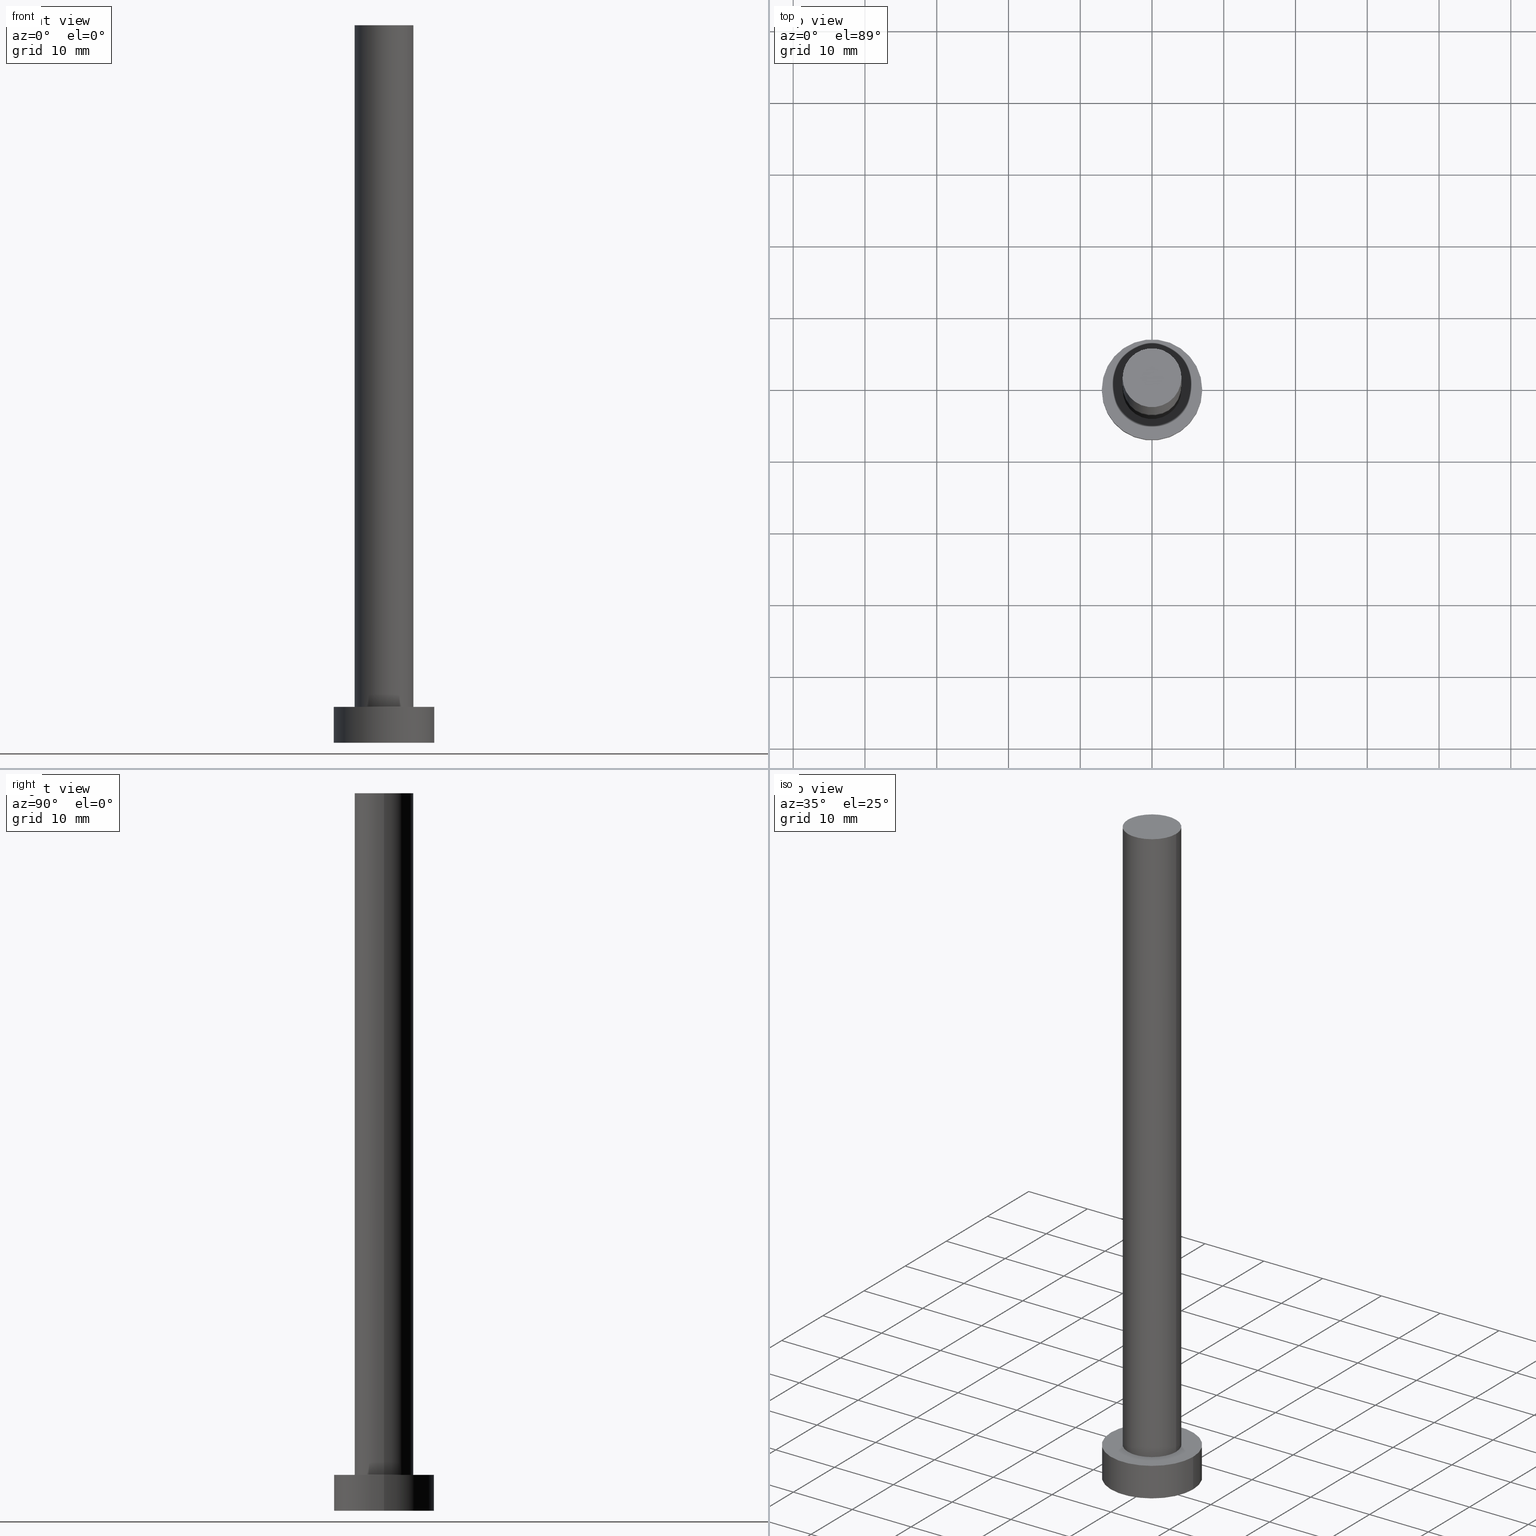
[diagram: canonical four-view strip — front | top / right | iso, engineering-drawing reading convention]
A machine part, canonical four-view strip (front | top / right | iso — engineering-drawing reading convention). The complete STEP part file that produces these views, byte-faithful:
ISO-10303-21;
HEADER;
FILE_DESCRIPTION (( 'STEP AP203' ),
    '1' );
FILE_NAME ('ecca.STEP',
    '2023-02-12T11:47:00',
    ( '' ),
    ( '' ),
    'SwSTEP 2.0',
    'SolidWorks 2019',
    '' );
FILE_SCHEMA (( 'CONFIG_CONTROL_DESIGN' ));
ENDSEC;

DATA;
#1 = EDGE_CURVE ( 'NONE', #114, #191, #79, .T. ) ;
#2 = FACE_OUTER_BOUND ( 'NONE', #239, .T. ) ;
#3 = CARTESIAN_POINT ( 'NONE',  ( 0.000000000000000000, 0.000000000000000000, 5.000000000000000000 ) ) ;
#4 = EDGE_CURVE ( 'NONE', #191, #254, #134, .T. ) ;
#5 = CARTESIAN_POINT ( 'NONE',  ( 4.099999999999999645, 5.021051876504147385E-16, 100.0000000000000000 ) ) ;
#6 = DIRECTION ( 'NONE',  ( -0.000000000000000000, -0.000000000000000000, -1.000000000000000000 ) ) ;
#7 = CARTESIAN_POINT ( 'NONE',  ( -4.099999999999999645, 0.000000000000000000, 5.000000000000000000 ) ) ;
#8 = COORDINATED_UNIVERSAL_TIME_OFFSET ( 1, 0, .AHEAD. ) ;
#9 = CARTESIAN_POINT ( 'NONE',  ( 0.000000000000000000, 0.000000000000000000, 0.000000000000000000 ) ) ;
#10 = APPROVAL_DATE_TIME ( #110, #227 ) ;
#11 = APPROVAL_ROLE ( '' ) ;
#12 = VECTOR ( 'NONE', #202, 1000.000000000000000 ) ;
#13 = CARTESIAN_POINT ( 'NONE',  ( 0.000000000000000000, 0.000000000000000000, 100.0000000000000000 ) ) ;
#14 = AXIS2_PLACEMENT_3D ( 'NONE', #220, #143, #140 ) ;
#15 = ORIENTED_EDGE ( 'NONE', *, *, #46, .T. ) ;
#16 = ADVANCED_FACE ( 'NONE', ( #38 ), #237, .T. ) ;
#17 = ORIENTED_EDGE ( 'NONE', *, *, #210, .F. ) ;
#18 = EDGE_LOOP ( 'NONE', ( #77, #152 ) ) ;
#19 = ORIENTED_EDGE ( 'NONE', *, *, #46, .F. ) ;
#20 =( NAMED_UNIT ( * ) PLANE_ANGLE_UNIT ( ) SI_UNIT ( $, .RADIAN. ) );
#21 = DIRECTION ( 'NONE',  ( 1.000000000000000000, 0.000000000000000000, 0.000000000000000000 ) ) ;
#22 = VECTOR ( 'NONE', #44, 1000.000000000000000 ) ;
#23 = FACE_BOUND ( 'NONE', #94, .T. ) ;
#24 = ADVANCED_FACE ( 'NONE', ( #175 ), #212, .T. ) ;
#25 = CARTESIAN_POINT ( 'NONE',  ( 0.000000000000000000, 0.000000000000000000, 5.000000000000000000 ) ) ;
#26 = CARTESIAN_POINT ( 'NONE',  ( 7.000000000000000000, 8.572527594031473190E-16, 5.000000000000000000 ) ) ;
#27 = AXIS2_PLACEMENT_3D ( 'NONE', #116, #92, #95 ) ;
#28 = DATE_AND_TIME ( #31, #186 ) ;
#29 = PRODUCT_DEFINITION_FORMATION_WITH_SPECIFIED_SOURCE ( 'LIBOVOLN�', '', #226, .NOT_KNOWN. ) ;
#30 = COORDINATED_UNIVERSAL_TIME_OFFSET ( 1, 0, .AHEAD. ) ;
#31 = CALENDAR_DATE ( 2023, 12, 2 ) ;
#32 = CC_DESIGN_PERSON_AND_ORGANIZATION_ASSIGNMENT ( #50, #171, ( #35 ) ) ;
#33 = APPROVAL_PERSON_ORGANIZATION ( #225, #185, #11 ) ;
#34 = ORIENTED_EDGE ( 'NONE', *, *, #4, .T. ) ;
#35 = PRODUCT_DEFINITION ( 'NEZN�M�', '', #29, #238 ) ;
#36 =( GEOMETRIC_REPRESENTATION_CONTEXT ( 3 ) GLOBAL_UNCERTAINTY_ASSIGNED_CONTEXT ( ( #216 ) ) GLOBAL_UNIT_ASSIGNED_CONTEXT ( ( #64, #20, #89 ) ) REPRESENTATION_CONTEXT ( 'NONE', 'WORKASPACE' ) );
#37 = ORIENTED_EDGE ( 'NONE', *, *, #60, .F. ) ;
#38 = FACE_OUTER_BOUND ( 'NONE', #76, .T. ) ;
#39 = CC_DESIGN_PERSON_AND_ORGANIZATION_ASSIGNMENT ( #71, #67, ( #167 ) ) ;
#40 = ORIENTED_EDGE ( 'NONE', *, *, #248, .T. ) ;
#41 = DIRECTION ( 'NONE',  ( 0.000000000000000000, 0.000000000000000000, 1.000000000000000000 ) ) ;
#42 = CARTESIAN_POINT ( 'NONE',  ( -4.099999999999999645, 0.000000000000000000, 100.0000000000000000 ) ) ;
#43 = CARTESIAN_POINT ( 'NONE',  ( 7.000000000000000000, 8.572527594031473190E-16, 5.000000000000000000 ) ) ;
#44 = DIRECTION ( 'NONE',  ( -0.000000000000000000, -0.000000000000000000, -1.000000000000000000 ) ) ;
#45 = PERSON ( 'NEUR�EN�', 'NEUR�EN�', 'NEUR�EN�', ('NEUR�EN�'), ('NEUR�EN�'), ('NEUR�EN�') ) ;
#46 = EDGE_CURVE ( 'NONE', #251, #155, #98, .T. ) ;
#47 = DIRECTION ( 'NONE',  ( 0.000000000000000000, 0.000000000000000000, 1.000000000000000000 ) ) ;
#48 = DATE_AND_TIME ( #247, #137 ) ;
#49 = AXIS2_PLACEMENT_3D ( 'NONE', #177, #242, #179 ) ;
#50 = PERSON_AND_ORGANIZATION ( #45, #121 ) ;
#51 = VERTEX_POINT ( 'NONE', #118 ) ;
#52 = ORIENTED_EDGE ( 'NONE', *, *, #4, .F. ) ;
#53 = AXIS2_PLACEMENT_3D ( 'NONE', #25, #222, #124 ) ;
#54 = CC_DESIGN_APPROVAL ( #227, ( #35 ) ) ;
#55 = CARTESIAN_POINT ( 'NONE',  ( -4.099999999999999645, 0.000000000000000000, 100.0000000000000000 ) ) ;
#56 = DIRECTION ( 'NONE',  ( -1.000000000000000000, 0.000000000000000000, 0.000000000000000000 ) ) ;
#57 = VERTEX_POINT ( 'NONE', #197 ) ;
#58 = CARTESIAN_POINT ( 'NONE',  ( 0.000000000000000000, 0.000000000000000000, 0.000000000000000000 ) ) ;
#59 = DIRECTION ( 'NONE',  ( 0.000000000000000000, 0.000000000000000000, 1.000000000000000000 ) ) ;
#60 = EDGE_CURVE ( 'NONE', #51, #57, #252, .T. ) ;
#61 = PLANE ( 'NONE',  #84 ) ;
#62 = APPROVAL_PERSON_ORGANIZATION ( #68, #214, #165 ) ;
#63 = DIRECTION ( 'NONE',  ( 0.000000000000000000, 0.000000000000000000, 1.000000000000000000 ) ) ;
#64 =( LENGTH_UNIT ( ) NAMED_UNIT ( * ) SI_UNIT ( .MILLI., .METRE. ) );
#65 = SHAPE_DEFINITION_REPRESENTATION ( #108, #148 ) ;
#66 = CIRCLE ( 'NONE', #201, 4.099999999999999645 ) ;
#67 = PERSON_AND_ORGANIZATION_ROLE ( 'classification_officer' ) ;
#68 = PERSON_AND_ORGANIZATION ( #45, #121 ) ;
#69 = EDGE_CURVE ( 'NONE', #155, #51, #160, .T. ) ;
#70 = CALENDAR_DATE ( 2023, 12, 2 ) ;
#71 = PERSON_AND_ORGANIZATION ( #45, #121 ) ;
#72 = LOCAL_TIME ( 12, 47, 0.000000000000000000, #8 ) ;
#73 = DIRECTION ( 'NONE',  ( 1.000000000000000000, 0.000000000000000000, 0.000000000000000000 ) ) ;
#74 = ORIENTED_EDGE ( 'NONE', *, *, #60, .T. ) ;
#75 = AXIS2_PLACEMENT_3D ( 'NONE', #217, #113, #73 ) ;
#76 = EDGE_LOOP ( 'NONE', ( #193, #232, #153, #52 ) ) ;
#77 = ORIENTED_EDGE ( 'NONE', *, *, #192, .T. ) ;
#78 = DIRECTION ( 'NONE',  ( 1.000000000000000000, 0.000000000000000000, 0.000000000000000000 ) ) ;
#79 = CIRCLE ( 'NONE', #249, 4.099999999999999645 ) ;
#80 = DIRECTION ( 'NONE',  ( -1.000000000000000000, 0.000000000000000000, 0.000000000000000000 ) ) ;
#81 = EDGE_CURVE ( 'NONE', #135, #254, #178, .T. ) ;
#82 = FACE_OUTER_BOUND ( 'NONE', #111, .T. ) ;
#83 = CARTESIAN_POINT ( 'NONE',  ( 0.000000000000000000, 0.000000000000000000, 5.000000000000000000 ) ) ;
#84 = AXIS2_PLACEMENT_3D ( 'NONE', #3, #59, #86 ) ;
#85 = CARTESIAN_POINT ( 'NONE',  ( -7.000000000000000000, 0.000000000000000000, 5.000000000000000000 ) ) ;
#86 = DIRECTION ( 'NONE',  ( 1.000000000000000000, 0.000000000000000000, -0.000000000000000000 ) ) ;
#87 = COORDINATED_UNIVERSAL_TIME_OFFSET ( 1, 0, .AHEAD. ) ;
#88 = CC_DESIGN_DATE_AND_TIME_ASSIGNMENT ( #28, #104, ( #167 ) ) ;
#89 =( NAMED_UNIT ( * ) SI_UNIT ( $, .STERADIAN. ) SOLID_ANGLE_UNIT ( ) );
#90 = APPLICATION_CONTEXT ( 'configuration controlled 3d designs of mechanical parts and assemblies' ) ;
#91 = PERSON_AND_ORGANIZATION ( #45, #121 ) ;
#92 = DIRECTION ( 'NONE',  ( -0.000000000000000000, -0.000000000000000000, -1.000000000000000000 ) ) ;
#93 = ORIENTED_EDGE ( 'NONE', *, *, #248, .F. ) ;
#94 = EDGE_LOOP ( 'NONE', ( #195, #97 ) ) ;
#95 = DIRECTION ( 'NONE',  ( -1.000000000000000000, 0.000000000000000000, 0.000000000000000000 ) ) ;
#96 = LOCAL_TIME ( 12, 47, 0.000000000000000000, #30 ) ;
#97 = ORIENTED_EDGE ( 'NONE', *, *, #81, .F. ) ;
#98 = CIRCLE ( 'NONE', #75, 7.000000000000000000 ) ;
#99 = PLANE ( 'NONE',  #233 ) ;
#100 = AXIS2_PLACEMENT_3D ( 'NONE', #123, #200, #203 ) ;
#101 = FACE_OUTER_BOUND ( 'NONE', #218, .T. ) ;
#102 = DIRECTION ( 'NONE',  ( 1.000000000000000000, 0.000000000000000000, 0.000000000000000000 ) ) ;
#103 = DIRECTION ( 'NONE',  ( -0.000000000000000000, -0.000000000000000000, -1.000000000000000000 ) ) ;
#104 = DATE_TIME_ROLE ( 'classification_date' ) ;
#105 = PERSON_AND_ORGANIZATION ( #45, #121 ) ;
#106 = ADVANCED_FACE ( 'NONE', ( #2 ), #119, .F. ) ;
#107 = APPLICATION_PROTOCOL_DEFINITION ( 'international standard', 'config_control_design', 1994, #183 ) ;
#108 = PRODUCT_DEFINITION_SHAPE ( 'NONE', 'NONE',  #35 ) ;
#109 = APPLICATION_PROTOCOL_DEFINITION ( 'international standard', 'config_control_design', 1994, #90 ) ;
#110 = DATE_AND_TIME ( #70, #205 ) ;
#111 = EDGE_LOOP ( 'NONE', ( #213, #19, #40, #176 ) ) ;
#112 = AXIS2_PLACEMENT_3D ( 'NONE', #58, #41, #21 ) ;
#113 = DIRECTION ( 'NONE',  ( 0.000000000000000000, 0.000000000000000000, 1.000000000000000000 ) ) ;
#114 = VERTEX_POINT ( 'NONE', #139 ) ;
#115 = CC_DESIGN_PERSON_AND_ORGANIZATION_ASSIGNMENT ( #91, #208, ( #226 ) ) ;
#116 = CARTESIAN_POINT ( 'NONE',  ( 0.000000000000000000, 0.000000000000000000, 100.0000000000000000 ) ) ;
#117 = AXIS2_PLACEMENT_3D ( 'NONE', #255, #172, #56 ) ;
#118 = CARTESIAN_POINT ( 'NONE',  ( 7.000000000000000000, 8.572527594031473190E-16, 0.000000000000000000 ) ) ;
#119 = PLANE ( 'NONE',  #49 ) ;
#120 = LINE ( 'NONE', #5, #158 ) ;
#121 = ORGANIZATION ( 'NEUR�EN�', 'NEUR�EN�', '' ) ;
#122 = ADVANCED_FACE ( 'NONE', ( #23, #101 ), #61, .T. ) ;
#123 = CARTESIAN_POINT ( 'NONE',  ( 0.000000000000000000, 0.000000000000000000, 5.000000000000000000 ) ) ;
#124 = DIRECTION ( 'NONE',  ( 1.000000000000000000, 0.000000000000000000, 0.000000000000000000 ) ) ;
#125 = VECTOR ( 'NONE', #215, 1000.000000000000000 ) ;
#126 = APPROVAL_DATE_TIME ( #48, #185 ) ;
#127 = APPROVAL_STATUS ( 'not_yet_approved' ) ;
#128 = CALENDAR_DATE ( 2023, 12, 2 ) ;
#129 = AXIS2_PLACEMENT_3D ( 'NONE', #83, #138, #221 ) ;
#130 = DIRECTION ( 'NONE',  ( 0.000000000000000000, 0.000000000000000000, 1.000000000000000000 ) ) ;
#131 = ORIENTED_EDGE ( 'NONE', *, *, #161, .T. ) ;
#132 = CC_DESIGN_PERSON_AND_ORGANIZATION_ASSIGNMENT ( #204, #187, ( #29 ) ) ;
#133 = ORIENTED_EDGE ( 'NONE', *, *, #180, .F. ) ;
#134 = LINE ( 'NONE', #55, #125 ) ;
#135 = VERTEX_POINT ( 'NONE', #241 ) ;
#136 = CIRCLE ( 'NONE', #53, 4.099999999999999645 ) ;
#137 = LOCAL_TIME ( 12, 47, 0.000000000000000000, #87 ) ;
#138 = DIRECTION ( 'NONE',  ( 0.000000000000000000, 0.000000000000000000, 1.000000000000000000 ) ) ;
#139 = CARTESIAN_POINT ( 'NONE',  ( 4.099999999999999645, 5.021051876504147385E-16, 100.0000000000000000 ) ) ;
#140 = DIRECTION ( 'NONE',  ( -1.000000000000000000, 0.000000000000000000, 0.000000000000000000 ) ) ;
#141 = APPROVAL_PERSON_ORGANIZATION ( #168, #227, #146 ) ;
#142 = CYLINDRICAL_SURFACE ( 'NONE', #156, 7.000000000000000000 ) ;
#143 = DIRECTION ( 'NONE',  ( -0.000000000000000000, -0.000000000000000000, -1.000000000000000000 ) ) ;
#144 = ADVANCED_FACE ( 'NONE', ( #82 ), #142, .T. ) ;
#145 = SECURITY_CLASSIFICATION_LEVEL ( 'unclassified' ) ;
#146 = APPROVAL_ROLE ( '' ) ;
#147 = APPROVAL_STATUS ( 'not_yet_approved' ) ;
#148 = ADVANCED_BREP_SHAPE_REPRESENTATION ( 'ecca', ( #194, #246 ), #36 ) ;
#149 = CIRCLE ( 'NONE', #112, 7.000000000000000000 ) ;
#150 = EDGE_LOOP ( 'NONE', ( #17, #154, #74, #93 ) ) ;
#151 = ADVANCED_FACE ( 'NONE', ( #181 ), #157, .T. ) ;
#152 = ORIENTED_EDGE ( 'NONE', *, *, #1, .T. ) ;
#153 = ORIENTED_EDGE ( 'NONE', *, *, #81, .T. ) ;
#154 = ORIENTED_EDGE ( 'NONE', *, *, #69, .T. ) ;
#155 = VERTEX_POINT ( 'NONE', #43 ) ;
#156 = AXIS2_PLACEMENT_3D ( 'NONE', #199, #103, #80 ) ;
#157 = CYLINDRICAL_SURFACE ( 'NONE', #14, 4.099999999999999645 ) ;
#158 = VECTOR ( 'NONE', #6, 1000.000000000000000 ) ;
#159 = DIRECTION ( 'NONE',  ( 0.000000000000000000, 0.000000000000000000, 1.000000000000000000 ) ) ;
#160 = LINE ( 'NONE', #26, #12 ) ;
#161 = EDGE_CURVE ( 'NONE', #254, #135, #136, .T. ) ;
#162 = CLOSED_SHELL ( 'NONE', ( #16, #24, #144, #122, #106, #151, #253 ) ) ;
#163 = DIRECTION ( 'NONE',  ( 1.000000000000000000, 0.000000000000000000, -0.000000000000000000 ) ) ;
#164 = CARTESIAN_POINT ( 'NONE',  ( -7.000000000000000000, 0.000000000000000000, 5.000000000000000000 ) ) ;
#165 = APPROVAL_ROLE ( '' ) ;
#166 = COORDINATED_UNIVERSAL_TIME_OFFSET ( 1, 0, .AHEAD. ) ;
#167 = SECURITY_CLASSIFICATION ( '', '', #145 ) ;
#168 = PERSON_AND_ORGANIZATION ( #45, #121 ) ;
#169 = PRODUCT_RELATED_PRODUCT_CATEGORY ( 'detail', '', ( #226 ) ) ;
#170 = DIRECTION ( 'NONE',  ( 1.000000000000000000, 0.000000000000000000, 0.000000000000000000 ) ) ;
#171 = PERSON_AND_ORGANIZATION_ROLE ( 'creator' ) ;
#172 = DIRECTION ( 'NONE',  ( -0.000000000000000000, -0.000000000000000000, -1.000000000000000000 ) ) ;
#173 = ORIENTED_EDGE ( 'NONE', *, *, #210, .T. ) ;
#174 = ORIENTED_EDGE ( 'NONE', *, *, #192, .F. ) ;
#175 = FACE_OUTER_BOUND ( 'NONE', #150, .T. ) ;
#176 = ORIENTED_EDGE ( 'NONE', *, *, #230, .T. ) ;
#177 = CARTESIAN_POINT ( 'NONE',  ( 0.000000000000000000, 0.000000000000000000, 0.000000000000000000 ) ) ;
#178 = CIRCLE ( 'NONE', #129, 4.099999999999999645 ) ;
#179 = DIRECTION ( 'NONE',  ( 1.000000000000000000, 0.000000000000000000, -0.000000000000000000 ) ) ;
#180 = EDGE_CURVE ( 'NONE', #114, #135, #120, .T. ) ;
#181 = FACE_OUTER_BOUND ( 'NONE', #196, .T. ) ;
#182 = LINE ( 'NONE', #85, #22 ) ;
#183 = APPLICATION_CONTEXT ( 'configuration controlled 3d designs of mechanical parts and assemblies' ) ;
#184 = CARTESIAN_POINT ( 'NONE',  ( 0.000000000000000000, 0.000000000000000000, 100.0000000000000000 ) ) ;
#185 = APPROVAL ( #127, 'NEUR�EN�' ) ;
#186 = LOCAL_TIME ( 12, 47, 0.000000000000000000, #207 ) ;
#187 = PERSON_AND_ORGANIZATION_ROLE ( 'design_supplier' ) ;
#188 = MECHANICAL_CONTEXT ( 'NONE', #90, 'mechanical' ) ;
#189 = CC_DESIGN_PERSON_AND_ORGANIZATION_ASSIGNMENT ( #105, #223, ( #29 ) ) ;
#190 = DATE_TIME_ROLE ( 'creation_date' ) ;
#191 = VERTEX_POINT ( 'NONE', #42 ) ;
#192 = EDGE_CURVE ( 'NONE', #191, #114, #66, .T. ) ;
#193 = ORIENTED_EDGE ( 'NONE', *, *, #1, .F. ) ;
#194 = MANIFOLD_SOLID_BREP ( 'P�idat vysunut�m3', #162 ) ;
#195 = ORIENTED_EDGE ( 'NONE', *, *, #161, .F. ) ;
#196 = EDGE_LOOP ( 'NONE', ( #133, #174, #34, #131 ) ) ;
#197 = CARTESIAN_POINT ( 'NONE',  ( -7.000000000000000000, 0.000000000000000000, 0.000000000000000000 ) ) ;
#198 = CC_DESIGN_APPROVAL ( #214, ( #167 ) ) ;
#199 = CARTESIAN_POINT ( 'NONE',  ( 0.000000000000000000, 0.000000000000000000, 5.000000000000000000 ) ) ;
#200 = DIRECTION ( 'NONE',  ( 0.000000000000000000, 0.000000000000000000, 1.000000000000000000 ) ) ;
#201 = AXIS2_PLACEMENT_3D ( 'NONE', #240, #63, #102 ) ;
#202 = DIRECTION ( 'NONE',  ( -0.000000000000000000, -0.000000000000000000, -1.000000000000000000 ) ) ;
#203 = DIRECTION ( 'NONE',  ( 1.000000000000000000, 0.000000000000000000, 0.000000000000000000 ) ) ;
#204 = PERSON_AND_ORGANIZATION ( #45, #121 ) ;
#205 = LOCAL_TIME ( 12, 47, 0.000000000000000000, #166 ) ;
#206 = CALENDAR_DATE ( 2023, 12, 2 ) ;
#207 = COORDINATED_UNIVERSAL_TIME_OFFSET ( 1, 0, .AHEAD. ) ;
#208 = PERSON_AND_ORGANIZATION_ROLE ( 'design_owner' ) ;
#209 = DATE_AND_TIME ( #128, #72 ) ;
#210 = EDGE_CURVE ( 'NONE', #155, #251, #229, .T. ) ;
#211 = AXIS2_PLACEMENT_3D ( 'NONE', #231, #130, #219 ) ;
#212 = CYLINDRICAL_SURFACE ( 'NONE', #117, 7.000000000000000000 ) ;
#213 = ORIENTED_EDGE ( 'NONE', *, *, #69, .F. ) ;
#214 = APPROVAL ( #147, 'NEUR�EN�' ) ;
#215 = DIRECTION ( 'NONE',  ( -0.000000000000000000, -0.000000000000000000, -1.000000000000000000 ) ) ;
#216 = UNCERTAINTY_MEASURE_WITH_UNIT (LENGTH_MEASURE( 1.000000000000000082E-05 ), #64, 'distance_accuracy_value', 'NONE');
#217 = CARTESIAN_POINT ( 'NONE',  ( 0.000000000000000000, 0.000000000000000000, 5.000000000000000000 ) ) ;
#218 = EDGE_LOOP ( 'NONE', ( #15, #173 ) ) ;
#219 = DIRECTION ( 'NONE',  ( 1.000000000000000000, 0.000000000000000000, 0.000000000000000000 ) ) ;
#220 = CARTESIAN_POINT ( 'NONE',  ( 0.000000000000000000, 0.000000000000000000, 100.0000000000000000 ) ) ;
#221 = DIRECTION ( 'NONE',  ( 1.000000000000000000, 0.000000000000000000, 0.000000000000000000 ) ) ;
#222 = DIRECTION ( 'NONE',  ( 0.000000000000000000, 0.000000000000000000, 1.000000000000000000 ) ) ;
#223 = PERSON_AND_ORGANIZATION_ROLE ( 'creator' ) ;
#224 = CC_DESIGN_APPROVAL ( #185, ( #29 ) ) ;
#225 = PERSON_AND_ORGANIZATION ( #45, #121 ) ;
#226 = PRODUCT ( 'ecca', 'ecca', '', ( #188 ) ) ;
#227 = APPROVAL ( #245, 'NEUR�EN�' ) ;
#228 = DATE_AND_TIME ( #206, #96 ) ;
#229 = CIRCLE ( 'NONE', #100, 7.000000000000000000 ) ;
#230 = EDGE_CURVE ( 'NONE', #57, #51, #149, .T. ) ;
#231 = CARTESIAN_POINT ( 'NONE',  ( 0.000000000000000000, 0.000000000000000000, 0.000000000000000000 ) ) ;
#232 = ORIENTED_EDGE ( 'NONE', *, *, #180, .T. ) ;
#233 = AXIS2_PLACEMENT_3D ( 'NONE', #184, #159, #163 ) ;
#234 = CC_DESIGN_SECURITY_CLASSIFICATION ( #167, ( #29 ) ) ;
#235 = DIRECTION ( 'NONE',  ( 0.000000000000000000, 0.000000000000000000, 1.000000000000000000 ) ) ;
#236 = CC_DESIGN_DATE_AND_TIME_ASSIGNMENT ( #209, #190, ( #35 ) ) ;
#237 = CYLINDRICAL_SURFACE ( 'NONE', #27, 4.099999999999999645 ) ;
#238 = DESIGN_CONTEXT ( 'detailed design', #183, 'design' ) ;
#239 = EDGE_LOOP ( 'NONE', ( #250, #37 ) ) ;
#240 = CARTESIAN_POINT ( 'NONE',  ( 0.000000000000000000, 0.000000000000000000, 100.0000000000000000 ) ) ;
#241 = CARTESIAN_POINT ( 'NONE',  ( 4.099999999999999645, 5.021051876504147385E-16, 5.000000000000000000 ) ) ;
#242 = DIRECTION ( 'NONE',  ( 0.000000000000000000, 0.000000000000000000, 1.000000000000000000 ) ) ;
#243 = FACE_OUTER_BOUND ( 'NONE', #18, .T. ) ;
#244 = APPROVAL_DATE_TIME ( #228, #214 ) ;
#245 = APPROVAL_STATUS ( 'not_yet_approved' ) ;
#246 = AXIS2_PLACEMENT_3D ( 'NONE', #9, #47, #170 ) ;
#247 = CALENDAR_DATE ( 2023, 12, 2 ) ;
#248 = EDGE_CURVE ( 'NONE', #251, #57, #182, .T. ) ;
#249 = AXIS2_PLACEMENT_3D ( 'NONE', #13, #235, #78 ) ;
#250 = ORIENTED_EDGE ( 'NONE', *, *, #230, .F. ) ;
#251 = VERTEX_POINT ( 'NONE', #164 ) ;
#252 = CIRCLE ( 'NONE', #211, 7.000000000000000000 ) ;
#253 = ADVANCED_FACE ( 'NONE', ( #243 ), #99, .T. ) ;
#254 = VERTEX_POINT ( 'NONE', #7 ) ;
#255 = CARTESIAN_POINT ( 'NONE',  ( 0.000000000000000000, 0.000000000000000000, 5.000000000000000000 ) ) ;
ENDSEC;
END-ISO-10303-21;
